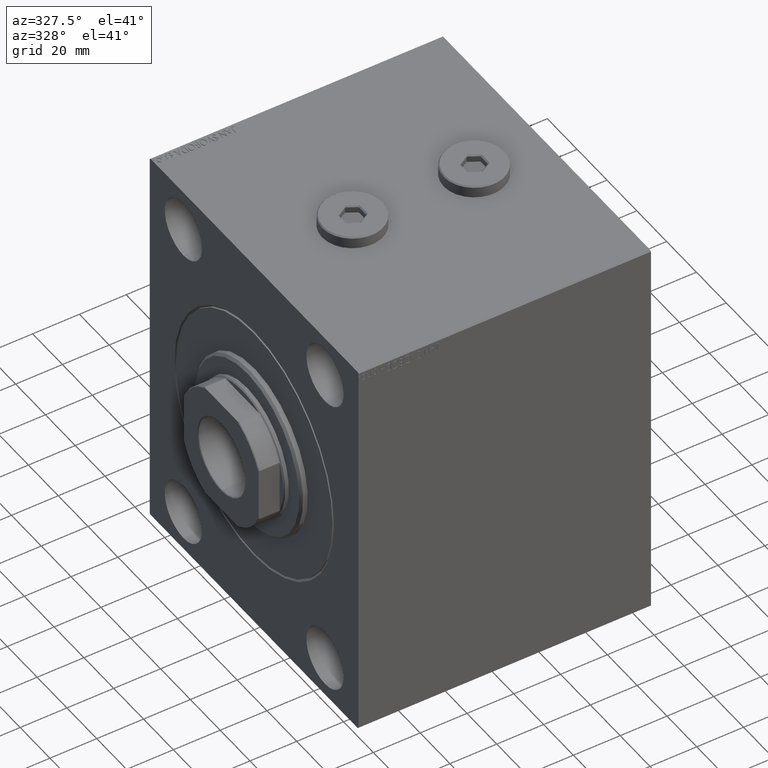
[diagram: clean part render]
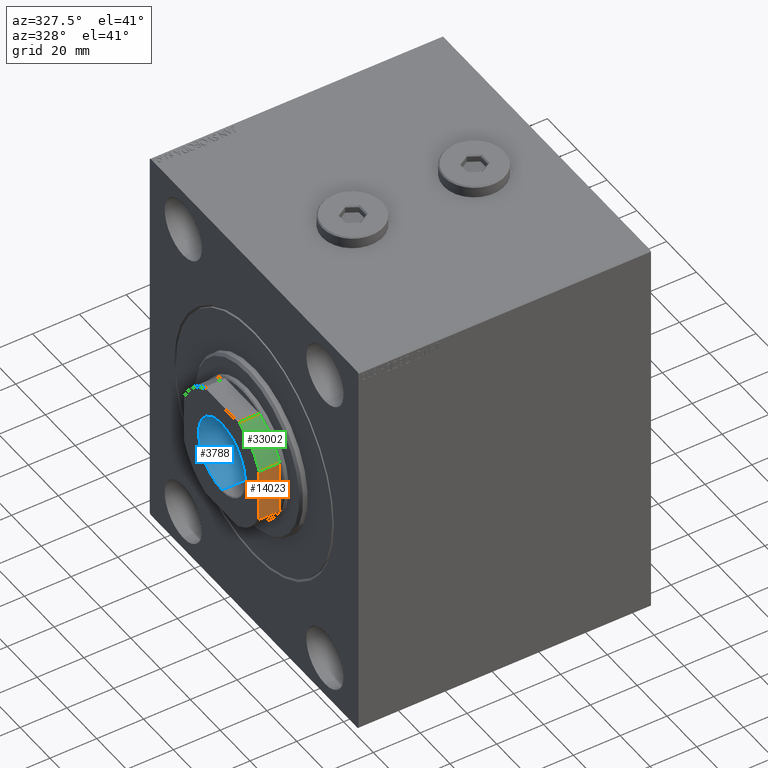
[diagram: same view with three faces highlighted in distinct colors, each labeled with its STEP entity id]
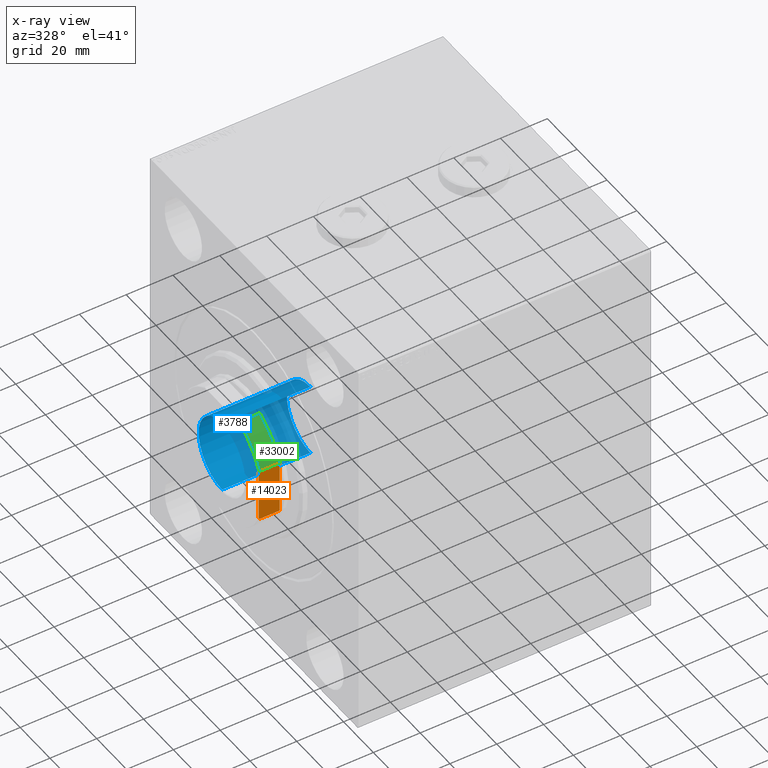
[diagram: x-ray of the same camera — body ghosted, the three highlighted faces saturated]
A machine part, auxiliary view with three faces highlighted in distinct colors.
The next image is the same camera in x-ray (body ghosted, the three faces saturated) — at least one of them is partly hidden behind the body in this view.
Their STEP definitions:

[orange] entity #14023 — the highlighted planar face has unit normal (0, 1, 0).
#3 = ORIENTED_EDGE ( 'NONE', *, *, #27159, .T. ) ;
#112 = DIRECTION ( 'NONE',  ( 1.000000000000000000, 0.000000000000000000, 0.000000000000000000 ) ) ;
#931 = CARTESIAN_POINT ( 'NONE',  ( 11.21071381544324197, -25.00000000000000355, 64.80236866784038341 ) ) ;
#1688 = LINE ( 'NONE', #11720, #25548 ) ;
#1738 = DIRECTION ( 'NONE',  ( 0.000000000000000000, 1.000000000000000000, 0.000000000000000000 ) ) ;
#3415 = CARTESIAN_POINT ( 'NONE',  ( 10.71634265969508704, -24.99999999999999289, 64.99999999999998579 ) ) ;
#3959 = B_SPLINE_CURVE_WITH_KNOTS ( 'NONE', 3,
 ( #18270, #931, #18718, #32384 ),
 .UNSPECIFIED., .F., .F.,
 ( 4, 4 ),
 ( 0.000000000000000000, 0.0007985880942733263738 ),
 .UNSPECIFIED. ) ;
#4163 = CARTESIAN_POINT ( 'NONE',  ( 11.45643923738959025, -25.00000000000000355, 56.00000000000000000 ) ) ;
#4233 = B_SPLINE_CURVE_WITH_KNOTS ( 'NONE', 3,
 ( #18917, #25522, #33031, #36673 ),
 .UNSPECIFIED., .F., .F.,
 ( 4, 4 ),
 ( 3.469446951953614189E-18, 0.0007985880942733424200 ),
 .UNSPECIFIED. ) ;
#5790 = CARTESIAN_POINT ( 'NONE',  ( 11.45643923738959025, -25.00000000000000355, 64.70000000000000284 ) ) ;
#7341 = EDGE_CURVE ( 'NONE', #33230, #34817, #4233, .T. ) ;
#7378 = EDGE_CURVE ( 'NONE', #30757, #34817, #36900, .T. ) ;
#11720 = CARTESIAN_POINT ( 'NONE',  ( -24.99999999999999289, -25.00000000000000000, 64.99999999999998579 ) ) ;
#12866 = VECTOR ( 'NONE', #15038, 1000.000000000000000 ) ;
#14023 = ADVANCED_FACE ( 'NONE', ( #22482 ), #26819, .F. ) ;
#14609 = ORIENTED_EDGE ( 'NONE', *, *, #24375, .T. ) ;
#15038 = DIRECTION ( 'NONE',  ( -0.000000000000000000, -0.000000000000000000, 1.000000000000000000 ) ) ;
#16108 = DIRECTION ( 'NONE',  ( 0.000000000000000000, -0.000000000000000000, 1.000000000000000000 ) ) ;
#16665 = VERTEX_POINT ( 'NONE', #5790 ) ;
#16799 = VERTEX_POINT ( 'NONE', #4163 ) ;
#17443 = LINE ( 'NONE', #31334, #35792 ) ;
#18270 = CARTESIAN_POINT ( 'NONE',  ( 11.45643923738959025, -25.00000000000000355, 64.70000000000000284 ) ) ;
#18718 = CARTESIAN_POINT ( 'NONE',  ( 10.96400998265873383, -25.00000000000000000, 64.90242323902617727 ) ) ;
#18816 = ORIENTED_EDGE ( 'NONE', *, *, #21921, .F. ) ;
#18829 = CARTESIAN_POINT ( 'NONE',  ( 11.45643923738959025, -25.00000000000000355, -0.001000000000001000089 ) ) ;
#18917 = CARTESIAN_POINT ( 'NONE',  ( -10.71634265969507283, -25.00000000000000000, 64.99999999999998579 ) ) ;
#19849 = VECTOR ( 'NONE', #36360, 1000.000000000000000 ) ;
#21921 = EDGE_CURVE ( 'NONE', #33230, #35176, #1688, .T. ) ;
#22459 = LINE ( 'NONE', #18829, #19849 ) ;
#22482 = FACE_OUTER_BOUND ( 'NONE', #40550, .T. ) ;
#24375 = EDGE_CURVE ( 'NONE', #30757, #16799, #17443, .T. ) ;
#25522 = CARTESIAN_POINT ( 'NONE',  ( -10.96400998265872673, -25.00000000000000000, 64.90242323902617727 ) ) ;
#25548 = VECTOR ( 'NONE', #39502, 1000.000000000000000 ) ;
#25554 = ORIENTED_EDGE ( 'NONE', *, *, #31388, .T. ) ;
#26819 = PLANE ( 'NONE',  #33457 ) ;
#27159 = EDGE_CURVE ( 'NONE', #16665, #35176, #3959, .T. ) ;
#27983 = ORIENTED_EDGE ( 'NONE', *, *, #7378, .F. ) ;
#30757 = VERTEX_POINT ( 'NONE', #31768 ) ;
#31334 = CARTESIAN_POINT ( 'NONE',  ( -24.99999999999999289, -25.00000000000000000, 55.99999999999999289 ) ) ;
#31388 = EDGE_CURVE ( 'NONE', #16799, #16665, #22459, .T. ) ;
#31768 = CARTESIAN_POINT ( 'NONE',  ( -11.45643923738959025, -25.00000000000000355, 56.00000000000000000 ) ) ;
#32384 = CARTESIAN_POINT ( 'NONE',  ( 10.71634265969508704, -24.99999999999999289, 64.99999999999998579 ) ) ;
#33031 = CARTESIAN_POINT ( 'NONE',  ( -11.21071381544324019, -25.00000000000000000, 64.80236866784038341 ) ) ;
#33230 = VERTEX_POINT ( 'NONE', #42122 ) ;
#33457 = AXIS2_PLACEMENT_3D ( 'NONE', #40693, #1738, #16108 ) ;
#34817 = VERTEX_POINT ( 'NONE', #44256 ) ;
#35176 = VERTEX_POINT ( 'NONE', #3415 ) ;
#35792 = VECTOR ( 'NONE', #112, 1000.000000000000000 ) ;
#36360 = DIRECTION ( 'NONE',  ( -0.000000000000000000, -0.000000000000000000, 1.000000000000000000 ) ) ;
#36673 = CARTESIAN_POINT ( 'NONE',  ( -11.45643923738959025, -25.00000000000000355, 64.70000000000000284 ) ) ;
#36900 = LINE ( 'NONE', #43493, #12866 ) ;
#39502 = DIRECTION ( 'NONE',  ( 1.000000000000000000, 0.000000000000000000, 0.000000000000000000 ) ) ;
#40147 = ORIENTED_EDGE ( 'NONE', *, *, #7341, .T. ) ;
#40550 = EDGE_LOOP ( 'NONE', ( #25554, #3, #18816, #40147, #27983, #14609 ) ) ;
#40693 = CARTESIAN_POINT ( 'NONE',  ( -24.99999999999999289, -25.00000000000000000, 64.99999999999998579 ) ) ;
#42122 = CARTESIAN_POINT ( 'NONE',  ( -10.71634265969507283, -25.00000000000000000, 64.99999999999998579 ) ) ;
#43493 = CARTESIAN_POINT ( 'NONE',  ( -11.45643923738959025, -25.00000000000000355, -0.001000000000001000089 ) ) ;
#44256 = CARTESIAN_POINT ( 'NONE',  ( -11.45643923738959025, -25.00000000000000355, 64.70000000000000284 ) ) ;

[blue] entity #3788 — the highlighted cylindrical surface (partial cylindrical patch) has radius 15.75 mm, axis along (-1, 0, 0).
#659 = CARTESIAN_POINT ( 'NONE',  ( 15.74999999999999289, 0.000000000000000000, 64.70000000000000284 ) ) ;
#1587 = DIRECTION ( 'NONE',  ( -0.000000000000000000, -0.000000000000000000, 1.000000000000000000 ) ) ;
#3057 = CARTESIAN_POINT ( 'NONE',  ( 0.000000000000000000, 0.000000000000000000, 64.70000000000000284 ) ) ;
#3788 = ADVANCED_FACE ( 'NONE', ( #7978 ), #29845, .F. ) ;
#4792 = CARTESIAN_POINT ( 'NONE',  ( 0.000000000000000000, 0.000000000000000000, 64.99999999999998579 ) ) ;
#4810 = VERTEX_POINT ( 'NONE', #659 ) ;
#7333 = CARTESIAN_POINT ( 'NONE',  ( 15.74999999999999289, 0.000000000000000000, 64.99999999999998579 ) ) ;
#7438 = CARTESIAN_POINT ( 'NONE',  ( -15.74999999999999289, 1.928818708657080556E-15, 26.99999999999998934 ) ) ;
#7978 = FACE_OUTER_BOUND ( 'NONE', #39248, .T. ) ;
#9008 = CIRCLE ( 'NONE', #35912, 15.74999999999999289 ) ;
#10333 = VECTOR ( 'NONE', #28087, 1000.000000000000000 ) ;
#10417 = DIRECTION ( 'NONE',  ( -0.000000000000000000, -0.000000000000000000, 1.000000000000000000 ) ) ;
#12858 = DIRECTION ( 'NONE',  ( 1.000000000000000000, 0.000000000000000000, 0.000000000000000000 ) ) ;
#12903 = AXIS2_PLACEMENT_3D ( 'NONE', #4792, #1587, #22778 ) ;
#14503 = CARTESIAN_POINT ( 'NONE',  ( 0.000000000000000000, 0.000000000000000000, 26.99999999999998934 ) ) ;
#15136 = ORIENTED_EDGE ( 'NONE', *, *, #42508, .F. ) ;
#15565 = VERTEX_POINT ( 'NONE', #28499 ) ;
#15865 = DIRECTION ( 'NONE',  ( -0.000000000000000000, -0.000000000000000000, 1.000000000000000000 ) ) ;
#18999 = ORIENTED_EDGE ( 'NONE', *, *, #33421, .F. ) ;
#20042 = AXIS2_PLACEMENT_3D ( 'NONE', #3057, #33830, #12858 ) ;
#22778 = DIRECTION ( 'NONE',  ( 1.000000000000000000, 0.000000000000000000, 0.000000000000000000 ) ) ;
#24683 = EDGE_CURVE ( 'NONE', #29743, #4810, #35140, .T. ) ;
#28087 = DIRECTION ( 'NONE',  ( -0.000000000000000000, -0.000000000000000000, 1.000000000000000000 ) ) ;
#28499 = CARTESIAN_POINT ( 'NONE',  ( -15.74999999999999289, 1.928818708657080556E-15, 64.70000000000000284 ) ) ;
#29743 = VERTEX_POINT ( 'NONE', #31486 ) ;
#29845 = CYLINDRICAL_SURFACE ( 'NONE', #12903, 15.74999999999999289 ) ;
#31486 = CARTESIAN_POINT ( 'NONE',  ( 15.74999999999999289, 0.000000000000000000, 26.99999999999998934 ) ) ;
#32997 = ORIENTED_EDGE ( 'NONE', *, *, #38361, .T. ) ;
#33140 = VECTOR ( 'NONE', #15865, 1000.000000000000000 ) ;
#33394 = VERTEX_POINT ( 'NONE', #7438 ) ;
#33421 = EDGE_CURVE ( 'NONE', #29743, #33394, #9008, .T. ) ;
#33830 = DIRECTION ( 'NONE',  ( 0.000000000000000000, 0.000000000000000000, 1.000000000000000000 ) ) ;
#35140 = LINE ( 'NONE', #7333, #10333 ) ;
#35912 = AXIS2_PLACEMENT_3D ( 'NONE', #14503, #10417, #42291 ) ;
#36144 = CARTESIAN_POINT ( 'NONE',  ( -15.74999999999999289, 1.928818708657080556E-15, 64.99999999999998579 ) ) ;
#36367 = LINE ( 'NONE', #36144, #33140 ) ;
#36759 = ORIENTED_EDGE ( 'NONE', *, *, #24683, .T. ) ;
#38361 = EDGE_CURVE ( 'NONE', #4810, #15565, #41034, .T. ) ;
#39248 = EDGE_LOOP ( 'NONE', ( #15136, #18999, #36759, #32997 ) ) ;
#41034 = CIRCLE ( 'NONE', #20042, 15.74999999999999289 ) ;
#42291 = DIRECTION ( 'NONE',  ( 1.000000000000000000, 0.000000000000000000, 0.000000000000000000 ) ) ;
#42508 = EDGE_CURVE ( 'NONE', #33394, #15565, #36367, .T. ) ;

[green] entity #33002 — the highlighted cylindrical surface (partial cylindrical patch) has radius 27.5 mm, axis along (-1, 0, 0).
#223 = ORIENTED_EDGE ( 'NONE', *, *, #32141, .T. ) ;
#2322 = EDGE_LOOP ( 'NONE', ( #223, #24659, #41337, #18314 ) ) ;
#2784 = DIRECTION ( 'NONE',  ( 1.000000000000000000, 0.000000000000000000, 0.000000000000000000 ) ) ;
#4163 = CARTESIAN_POINT ( 'NONE',  ( 11.45643923738959025, -25.00000000000000355, 56.00000000000000000 ) ) ;
#4272 = DIRECTION ( 'NONE',  ( 0.000000000000000000, 0.000000000000000000, 1.000000000000000000 ) ) ;
#5790 = CARTESIAN_POINT ( 'NONE',  ( 11.45643923738959025, -25.00000000000000355, 64.70000000000000284 ) ) ;
#6837 = CIRCLE ( 'NONE', #32304, 27.50000000000000000 ) ;
#8491 = DIRECTION ( 'NONE',  ( -0.000000000000000000, -0.000000000000000000, -1.000000000000000000 ) ) ;
#8899 = CARTESIAN_POINT ( 'NONE',  ( 24.99999999999999289, -11.45643923738961689, 64.70000000000000284 ) ) ;
#10880 = CARTESIAN_POINT ( 'NONE',  ( 0.000000000000000000, 0.000000000000000000, 55.99999999999999289 ) ) ;
#12529 = VERTEX_POINT ( 'NONE', #41347 ) ;
#13722 = DIRECTION ( 'NONE',  ( -0.000000000000000000, -0.000000000000000000, 1.000000000000000000 ) ) ;
#16665 = VERTEX_POINT ( 'NONE', #5790 ) ;
#16799 = VERTEX_POINT ( 'NONE', #4163 ) ;
#18314 = ORIENTED_EDGE ( 'NONE', *, *, #44613, .T. ) ;
#18610 = CIRCLE ( 'NONE', #24432, 27.50000000000000711 ) ;
#18829 = CARTESIAN_POINT ( 'NONE',  ( 11.45643923738959025, -25.00000000000000355, -0.001000000000001000089 ) ) ;
#19433 = DIRECTION ( 'NONE',  ( 1.000000000000000000, 0.000000000000000000, 0.000000000000000000 ) ) ;
#19849 = VECTOR ( 'NONE', #36360, 1000.000000000000000 ) ;
#22459 = LINE ( 'NONE', #18829, #19849 ) ;
#22579 = LINE ( 'NONE', #29645, #33701 ) ;
#24432 = AXIS2_PLACEMENT_3D ( 'NONE', #10880, #4272, #38670 ) ;
#24659 = ORIENTED_EDGE ( 'NONE', *, *, #32904, .T. ) ;
#29645 = CARTESIAN_POINT ( 'NONE',  ( 24.99999999999999289, -11.45643923738961689, -0.001000000000001000089 ) ) ;
#31388 = EDGE_CURVE ( 'NONE', #16799, #16665, #22459, .T. ) ;
#32141 = EDGE_CURVE ( 'NONE', #12529, #34965, #22579, .T. ) ;
#32304 = AXIS2_PLACEMENT_3D ( 'NONE', #40146, #8491, #19433 ) ;
#32904 = EDGE_CURVE ( 'NONE', #34965, #16665, #6837, .T. ) ;
#33002 = ADVANCED_FACE ( 'NONE', ( #44924 ), #34015, .T. ) ;
#33701 = VECTOR ( 'NONE', #43523, 1000.000000000000000 ) ;
#34015 = CYLINDRICAL_SURFACE ( 'NONE', #35943, 27.50000000000000000 ) ;
#34238 = CARTESIAN_POINT ( 'NONE',  ( 0.000000000000000000, 0.000000000000000000, -0.001000000000001000089 ) ) ;
#34965 = VERTEX_POINT ( 'NONE', #8899 ) ;
#35943 = AXIS2_PLACEMENT_3D ( 'NONE', #34238, #13722, #2784 ) ;
#36360 = DIRECTION ( 'NONE',  ( -0.000000000000000000, -0.000000000000000000, 1.000000000000000000 ) ) ;
#38670 = DIRECTION ( 'NONE',  ( 1.000000000000000000, 0.000000000000000000, 0.000000000000000000 ) ) ;
#40146 = CARTESIAN_POINT ( 'NONE',  ( 0.000000000000000000, 0.000000000000000000, 64.70000000000000284 ) ) ;
#41337 = ORIENTED_EDGE ( 'NONE', *, *, #31388, .F. ) ;
#41347 = CARTESIAN_POINT ( 'NONE',  ( 24.99999999999999289, -11.45643923738961689, 56.00000000000000000 ) ) ;
#43523 = DIRECTION ( 'NONE',  ( -0.000000000000000000, -0.000000000000000000, 1.000000000000000000 ) ) ;
#44613 = EDGE_CURVE ( 'NONE', #16799, #12529, #18610, .T. ) ;
#44924 = FACE_OUTER_BOUND ( 'NONE', #2322, .T. ) ;